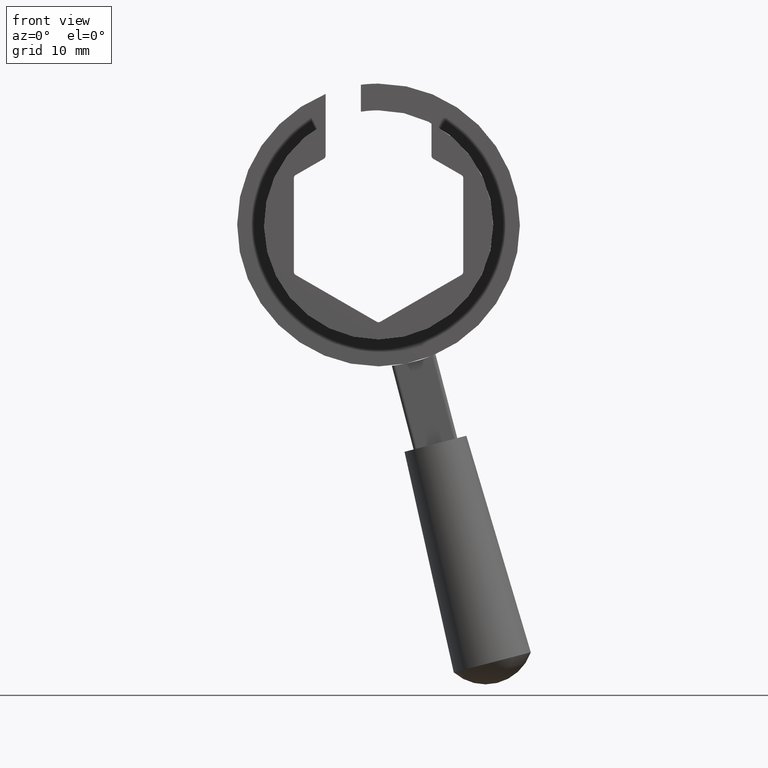
[diagram: clean part render]
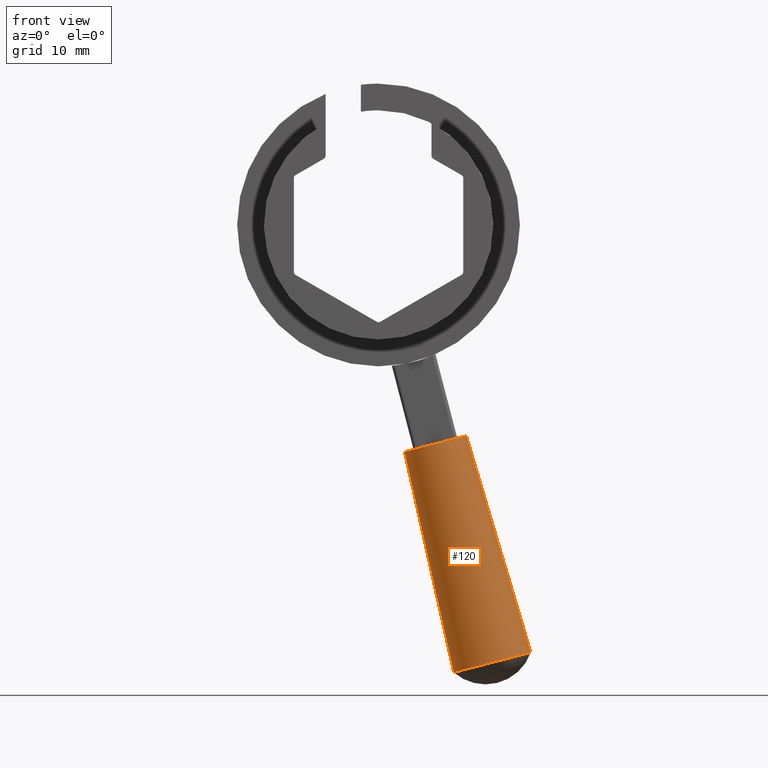
[diagram: same view with one face highlighted and labeled with its STEP entity id]
A machine part, front view. The second image highlights one B-rep face of the part: STEP entity #120.
In plain terms, the highlighted conical surface has half-angle 2 deg.
Its self-contained STEP definition (entity closure, byte-faithful):
#38 = EDGE_CURVE ( 'NONE', #70, #68, #526, .T. ) ;
#58 = EDGE_CURVE ( 'NONE', #68, #77, #581, .T. ) ;
#68 = VERTEX_POINT ( 'NONE', #621 ) ;
#70 = VERTEX_POINT ( 'NONE', #615 ) ;
#72 = EDGE_CURVE ( 'NONE', #70, #79, #614, .T. ) ;
#77 = VERTEX_POINT ( 'NONE', #593 ) ;
#79 = VERTEX_POINT ( 'NONE', #591 ) ;
#119 = ORIENTED_EDGE ( 'NONE', *, *, #38, .T. ) ;
#120 = ADVANCED_FACE ( 'NONE', ( #504 ), #503, .T. ) ;
#123 = EDGE_LOOP ( 'NONE', ( #126, #119, #140, #141 ) ) ;
#126 = ORIENTED_EDGE ( 'NONE', *, *, #72, .F. ) ;
#140 = ORIENTED_EDGE ( 'NONE', *, *, #58, .T. ) ;
#141 = ORIENTED_EDGE ( 'NONE', *, *, #142, .F. ) ;
#142 = EDGE_CURVE ( 'NONE', #79, #77, #719, .T. ) ;
#498 = DIRECTION ( 'NONE',  ( -0.9677980944146167300, 0.0000000000000000000, -0.2517277268149784000 ) ) ;
#499 = DIRECTION ( 'NONE',  ( 0.2517277268149788500, -4.930380657631323800E-032, -0.9677980944146167300 ) ) ;
#500 = CARTESIAN_POINT ( 'NONE',  ( 8.062839089883718600, 35.49899999999996700, -30.99857296410020500 ) ) ;
#501 = AXIS2_PLACEMENT_3D ( 'NONE', #500, #499, #498 ) ;
#503 = CONICAL_SURFACE ( 'NONE', #501, 4.525483399593908600, 0.03490658503988666700 ) ;
#504 = FACE_OUTER_BOUND ( 'NONE', #123, .T. ) ;
#523 = DIRECTION ( 'NONE',  ( -0.9677980944146167300, 0.0000000000000000000, -0.2517277268149784000 ) ) ;
#524 = DIRECTION ( 'NONE',  ( 0.2517277268149788500, -4.930380657631323800E-032, -0.9677980944146167300 ) ) ;
#525 = AXIS2_PLACEMENT_3D ( 'NONE', #531, #524, #523 ) ;
#526 = CIRCLE ( 'NONE', #525, 4.525483399593908600 ) ;
#531 = CARTESIAN_POINT ( 'NONE',  ( 8.062839089883718600, 35.49899999999996700, -30.99857296410020500 ) ) ;
#578 = DIRECTION ( 'NONE',  ( 0.2177987146805489500, -4.927377202949121400E-032, -0.9759937089364361100 ) ) ;
#579 = VECTOR ( 'NONE', #578, 1000.000000000000100 ) ;
#580 = CARTESIAN_POINT ( 'NONE',  ( 3.683084879451752300, 35.49899999999996700, -32.13776261301890000 ) ) ;
#581 = LINE ( 'NONE', #580, #579 ) ;
#591 = CARTESIAN_POINT ( 'NONE',  ( 21.57936069182238700, 35.49899999999996700, -60.54762550692004200 ) ) ;
#593 = CARTESIAN_POINT ( 'NONE',  ( 10.65689200410369400, 35.49899999999996700, -63.38859846381583900 ) ) ;
#611 = DIRECTION ( 'NONE',  ( 0.2853500474899683900, 4.273955692857101000E-018, -0.9584233669926212100 ) ) ;
#612 = VECTOR ( 'NONE', #611, 1000.000000000000100 ) ;
#613 = CARTESIAN_POINT ( 'NONE',  ( 12.44259330031568600, 35.49899999999996700, -29.85938331518151000 ) ) ;
#614 = LINE ( 'NONE', #613, #612 ) ;
#615 = CARTESIAN_POINT ( 'NONE',  ( 12.44259330031568400, 35.49899999999996700, -29.85938331518151000 ) ) ;
#621 = CARTESIAN_POINT ( 'NONE',  ( 3.683084879451752300, 35.49899999999996700, -32.13776261301890000 ) ) ;
#715 = DIRECTION ( 'NONE',  ( -0.9677980944146167300, 0.0000000000000000000, -0.2517277268149787900 ) ) ;
#716 = DIRECTION ( 'NONE',  ( 0.2517277268149788500, -4.930380657631323800E-032, -0.9677980944146167300 ) ) ;
#717 = CARTESIAN_POINT ( 'NONE',  ( 16.11812634796304500, 35.49899999999996700, -61.96811198536794100 ) ) ;
#718 = AXIS2_PLACEMENT_3D ( 'NONE', #717, #716, #715 ) ;
#719 = CIRCLE ( 'NONE', #718, 5.642948023329837200 ) ;